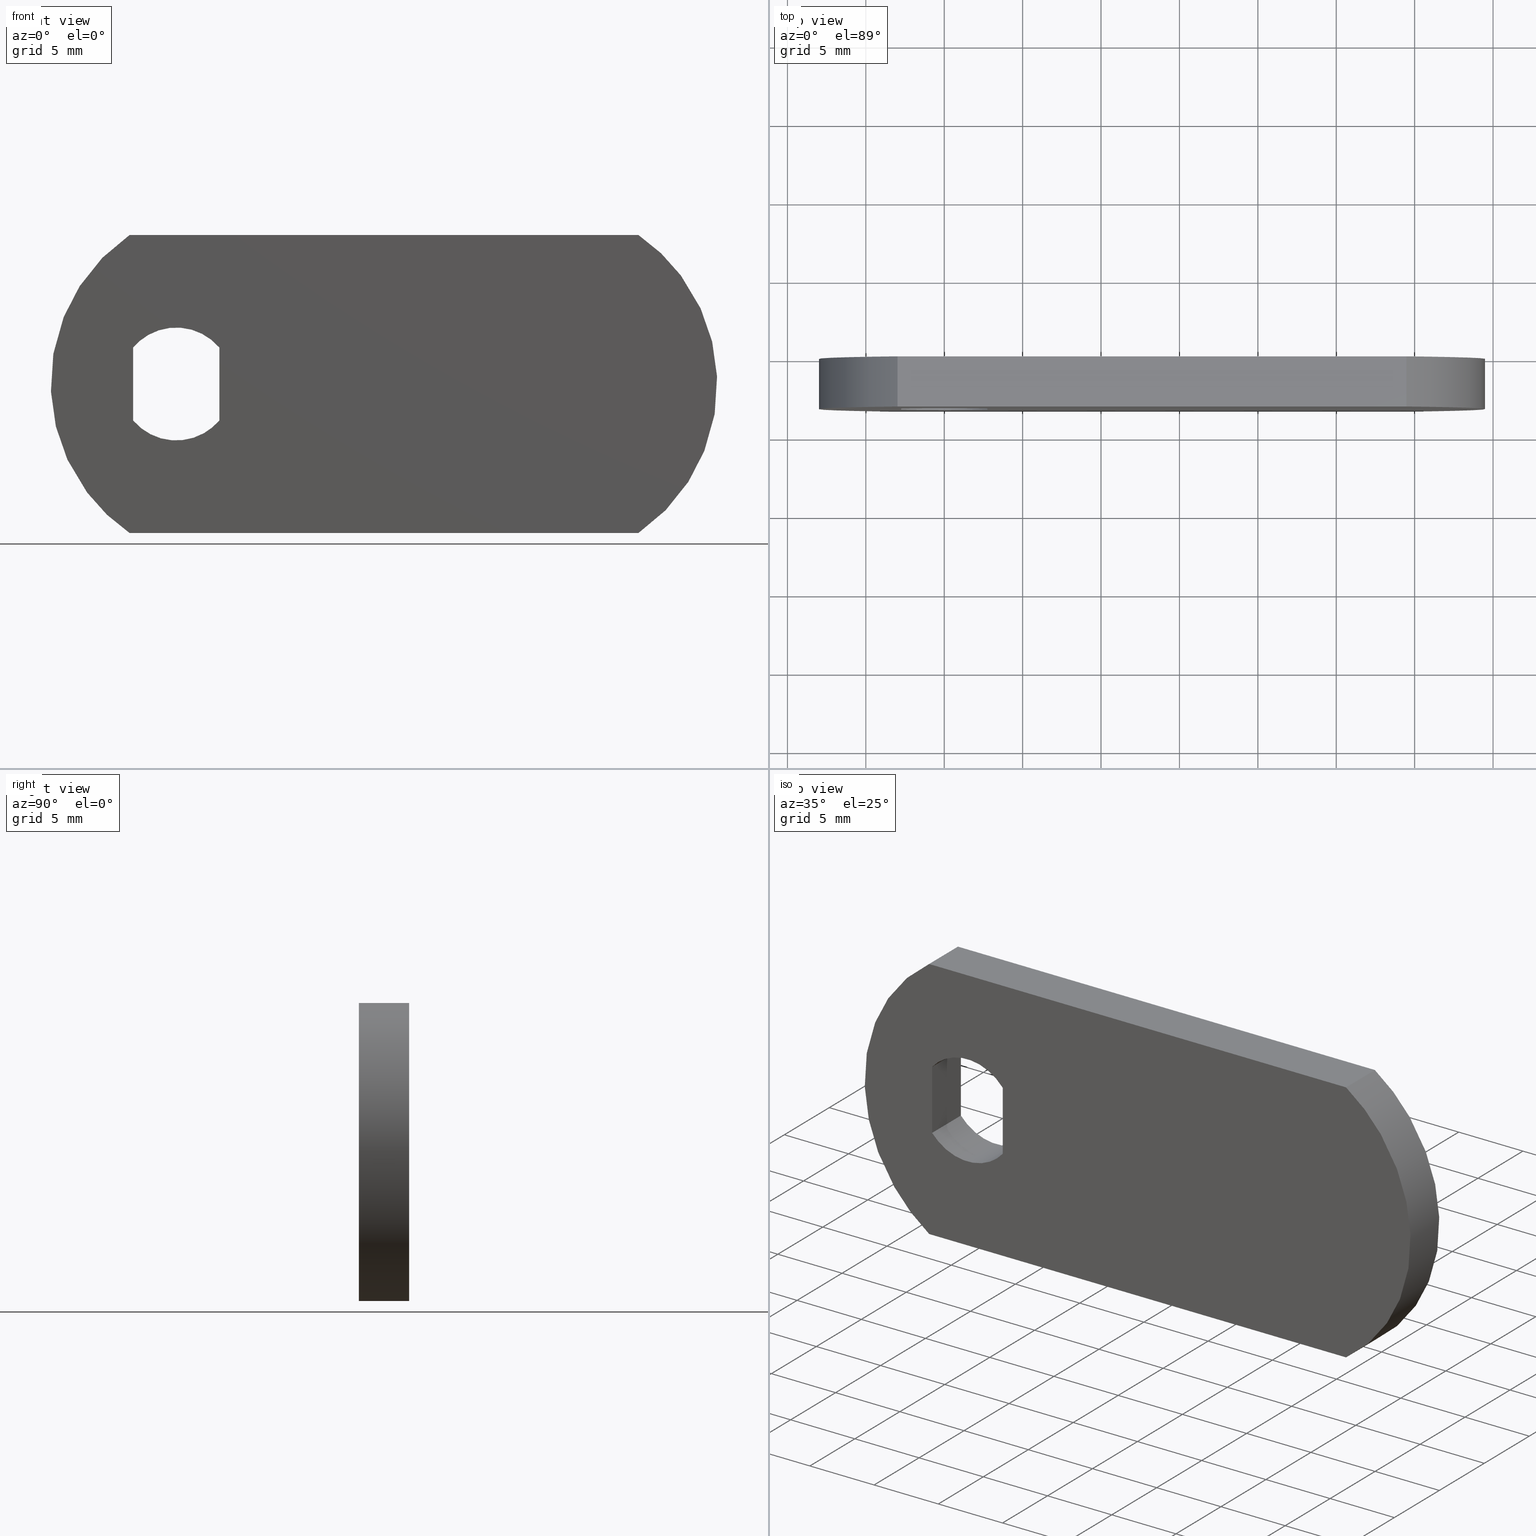
[diagram: canonical four-view strip — front | top / right | iso, engineering-drawing reading convention]
A machine part, canonical four-view strip (front | top / right | iso — engineering-drawing reading convention). The complete STEP part file that produces these views, byte-faithful:
ISO-10303-21;
HEADER;
/****************************************************************
 * Generated by software with PDE/Lib inside                    *
 * PDElib Version 4.4.1-0003, patched  Thursday August 19 11:58 *
 * International Technegroup Inc. (www.iti-oh.com)              *
 ****************************************************************/
FILE_DESCRIPTION((''),'2;1');
FILE_NAME('','2005-07-15T17:36:50',(''),(''),'','CADfix','');
FILE_SCHEMA(('AUTOMOTIVE_DESIGN'));
ENDSEC;
DATA;
#5=APPLICATION_CONTEXT('automotive design');
#6=APPLICATION_PROTOCOL_DEFINITION('Draft International Standard','automotive_design',1998,#5);
#7=PRODUCT_CONTEXT('None',#5,'mechanical');
#8=PRODUCT('cam','','None',(#7));
#9=PRODUCT_RELATED_PRODUCT_CATEGORY('part','description',(#8));
#10=PRODUCT_DEFINITION_FORMATION('None','None',#8);
#11=PRODUCT_DEFINITION_CONTEXT('part definition',#5,'design');
#12=PRODUCT_DEFINITION('None','None',#10,#11);
#18=(NAMED_UNIT(*)PLANE_ANGLE_UNIT()SI_UNIT($,.RADIAN.));
#19=DIMENSIONAL_EXPONENTS(0.0,0.0,0.0,0.0,0.0,0.0,0.0);
#20=PLANE_ANGLE_MEASURE_WITH_UNIT(PLANE_ANGLE_MEASURE(0.017453292500000),#18);
#24=(CONVERSION_BASED_UNIT('DEGREE',#20)NAMED_UNIT(#19)PLANE_ANGLE_UNIT());
#28=(NAMED_UNIT(*)SI_UNIT($,.STERADIAN.)SOLID_ANGLE_UNIT());
#32=(LENGTH_UNIT()NAMED_UNIT(*)SI_UNIT(.MILLI.,.METRE.));
#34=UNCERTAINTY_MEASURE_WITH_UNIT(LENGTH_MEASURE(0.001000000000000),#32,'DISTANCE_ACCURACY_VALUE','');
#36=(GEOMETRIC_REPRESENTATION_CONTEXT(3)GLOBAL_UNCERTAINTY_ASSIGNED_CONTEXT((#34))GLOBAL_UNIT_ASSIGNED_CONTEXT((#24,#28,#32))REPRESENTATION_CONTEXT('None','None'));
#37=AXIS2_PLACEMENT_3D('',#38,#39,#40);
#38=CARTESIAN_POINT('',(0.0,0.0,0.0));
#39=DIRECTION('',(0.0,0.0,1.0));
#40=DIRECTION('',(1.0,0.0,0.0));
#41=ADVANCED_BREP_SHAPE_REPRESENTATION('',(#37,#421),#36);
#42=PRODUCT_DEFINITION_SHAPE('','',#12);
#43=SHAPE_DEFINITION_REPRESENTATION(#42,#41);
#44=CARTESIAN_POINT('',(-10.122874917626749,0.0,10.449049963174311));
#45=CARTESIAN_POINT('',(36.622876057565577,0.0,10.449049963174311));
#46=CARTESIAN_POINT('',(-10.122874917626749,0.0,-10.449050472794029));
#47=CARTESIAN_POINT('',(36.622876057565577,0.0,-10.449050472794029));
#48=B_SPLINE_SURFACE_WITH_KNOTS('',1,1,((#44,#46),(#45,#47)),.UNSPECIFIED.,.F.,.F.,.U.,(2,2),(2,2),(0.0,46.745750975192337),(0.0,20.898100435968342),.UNSPECIFIED.);
#49=CARTESIAN_POINT('',(29.480740698407850,0.0,-9.500000000000000));
#50=VERTEX_POINT('',#49);
#51=CARTESIAN_POINT('',(29.480740698407850,0.0,9.500000000000000));
#52=VERTEX_POINT('',#51);
#53=CARTESIAN_POINT('',(29.480740698407850,0.0,-9.500000000000007));
#54=CARTESIAN_POINT('',(34.500000000000000,0.0,-6.075945470348388));
#55=CARTESIAN_POINT('',(34.500000000000000,0.0,0.0));
#56=CARTESIAN_POINT('',(34.500000000000000,0.0,6.075945470348382));
#57=CARTESIAN_POINT('',(29.480740698407860,0.0,9.500000000000002));
#65=(BOUNDED_CURVE()B_SPLINE_CURVE(2,(#53,#54,#55,#56,#57),.UNSPECIFIED.,.F.,.U.)B_SPLINE_CURVE_WITH_KNOTS((3,2,3),(0.0,0.500000000000000,1.0),.UNSPECIFIED.)CURVE()GEOMETRIC_REPRESENTATION_ITEM()RATIONAL_B_SPLINE_CURVE((1.0,0.884178338749251,1.0,0.884178338749251,1.0))REPRESENTATION_ITEM(''));
#66=EDGE_CURVE('',#50,#52,#65,.T.);
#67=ORIENTED_EDGE('',*,*,#66,.F.);
#68=CARTESIAN_POINT('',(-2.980740698407860,0.0,-9.500000000000000));
#69=VERTEX_POINT('',#68);
#70=CARTESIAN_POINT('',(-2.980740698407860,0.0,-9.500000000000000));
#71=CARTESIAN_POINT('',(29.480740698407850,0.0,-9.500000000000000));
#72=QUASI_UNIFORM_CURVE('',1,(#70,#71),.UNSPECIFIED.,.F.,.U.);
#73=EDGE_CURVE('',#69,#50,#72,.T.);
#74=ORIENTED_EDGE('',*,*,#73,.F.);
#75=CARTESIAN_POINT('',(-2.980740698407840,0.0,9.500000000000000));
#76=VERTEX_POINT('',#75);
#77=CARTESIAN_POINT('',(-2.980740698407848,0.0,9.500000000000007));
#78=CARTESIAN_POINT('',(-8.0,0.0,6.075945470348390));
#79=CARTESIAN_POINT('',(-8.0,0.0,0.0));
#80=CARTESIAN_POINT('',(-8.0,0.0,-6.075945470348378));
#81=CARTESIAN_POINT('',(-2.980740698407861,0.0,-9.499999999999998));
#89=(BOUNDED_CURVE()B_SPLINE_CURVE(2,(#77,#78,#79,#80,#81),.UNSPECIFIED.,.F.,.U.)B_SPLINE_CURVE_WITH_KNOTS((3,2,3),(0.0,0.500000000000000,1.0),.UNSPECIFIED.)CURVE()GEOMETRIC_REPRESENTATION_ITEM()RATIONAL_B_SPLINE_CURVE((1.0,0.884178338749251,1.0,0.884178338749251,1.0))REPRESENTATION_ITEM(''));
#90=EDGE_CURVE('',#76,#69,#89,.T.);
#91=ORIENTED_EDGE('',*,*,#90,.F.);
#92=CARTESIAN_POINT('',(29.480740698407850,0.0,9.500000000000000));
#93=CARTESIAN_POINT('',(-2.980740698407840,0.0,9.500000000000000));
#94=QUASI_UNIFORM_CURVE('',1,(#92,#93),.UNSPECIFIED.,.F.,.U.);
#95=EDGE_CURVE('',#52,#76,#94,.T.);
#96=ORIENTED_EDGE('',*,*,#95,.F.);
#97=EDGE_LOOP('',(#67,#74,#91,#96));
#98=FACE_OUTER_BOUND('',#97,.T.);
#99=CARTESIAN_POINT('',(2.750000000000000,0.0,2.323252031097775));
#100=VERTEX_POINT('',#99);
#101=CARTESIAN_POINT('',(-2.750000000000000,0.0,2.323252031097780));
#102=VERTEX_POINT('',#101);
#103=CARTESIAN_POINT('',(2.750000000000000,0.0,2.323252031097775));
#104=CARTESIAN_POINT('',(1.671379159290174,0.0,3.600000000000000));
#105=CARTESIAN_POINT('',(0.0,0.0,3.600000000000000));
#106=CARTESIAN_POINT('',(-1.671379159290171,0.0,3.600000000000000));
#107=CARTESIAN_POINT('',(-2.750000000000004,0.0,2.323252031097784));
#115=(BOUNDED_CURVE()B_SPLINE_CURVE(2,(#103,#104,#105,#106,#107),.UNSPECIFIED.,.F.,.U.)B_SPLINE_CURVE_WITH_KNOTS((3,2,3),(0.0,0.500000000000000,1.0),.UNSPECIFIED.)CURVE()GEOMETRIC_REPRESENTATION_ITEM()RATIONAL_B_SPLINE_CURVE((1.0,0.907013722723105,1.0,0.907013722723105,1.0))REPRESENTATION_ITEM(''));
#116=EDGE_CURVE('',#100,#102,#115,.T.);
#117=ORIENTED_EDGE('',*,*,#116,.T.);
#118=CARTESIAN_POINT('',(-2.750000000000000,0.0,-2.323252031097780));
#119=VERTEX_POINT('',#118);
#120=CARTESIAN_POINT('',(-2.750000000000000,0.0,2.323252031097780));
#121=CARTESIAN_POINT('',(-2.750000000000000,0.0,-2.323252031097780));
#122=QUASI_UNIFORM_CURVE('',1,(#120,#121),.UNSPECIFIED.,.F.,.U.);
#123=EDGE_CURVE('',#102,#119,#122,.T.);
#124=ORIENTED_EDGE('',*,*,#123,.T.);
#125=CARTESIAN_POINT('',(2.750000000000000,0.0,-2.323252031097775));
#126=VERTEX_POINT('',#125);
#127=CARTESIAN_POINT('',(-2.750000000000003,0.0,-2.323252031097785));
#128=CARTESIAN_POINT('',(-1.671379159290170,0.0,-3.600000000000001));
#129=CARTESIAN_POINT('',(0.0,0.0,-3.600000000000000));
#130=CARTESIAN_POINT('',(1.671379159290173,0.0,-3.600000000000001));
#131=CARTESIAN_POINT('',(2.750000000000006,0.0,-2.323252031097781));
#139=(BOUNDED_CURVE()B_SPLINE_CURVE(2,(#127,#128,#129,#130,#131),.UNSPECIFIED.,.F.,.U.)B_SPLINE_CURVE_WITH_KNOTS((3,2,3),(0.0,0.500000000000000,1.0),.UNSPECIFIED.)CURVE()GEOMETRIC_REPRESENTATION_ITEM()RATIONAL_B_SPLINE_CURVE((1.0,0.907013722723105,1.0,0.907013722723105,1.0))REPRESENTATION_ITEM(''));
#140=EDGE_CURVE('',#119,#126,#139,.T.);
#141=ORIENTED_EDGE('',*,*,#140,.T.);
#142=CARTESIAN_POINT('',(2.750000000000000,0.0,-2.323252031097775));
#143=CARTESIAN_POINT('',(2.750000000000000,0.0,2.323252031097775));
#144=QUASI_UNIFORM_CURVE('',1,(#142,#143),.UNSPECIFIED.,.F.,.U.);
#145=EDGE_CURVE('',#126,#100,#144,.T.);
#146=ORIENTED_EDGE('',*,*,#145,.T.);
#147=EDGE_LOOP('',(#117,#124,#141,#146));
#148=FACE_BOUND('',#147,.T.);
#149=ADVANCED_FACE('',(#98,#148),#48,.T.);
#150=CARTESIAN_POINT('',(-10.122874917626749,-3.200000000000000,10.449049963174311));
#151=CARTESIAN_POINT('',(36.622876057565577,-3.200000000000000,10.449049963174311));
#152=CARTESIAN_POINT('',(-10.122874917626749,-3.200000000000000,-10.449050472794029));
#153=CARTESIAN_POINT('',(36.622876057565577,-3.200000000000000,-10.449050472794029));
#154=B_SPLINE_SURFACE_WITH_KNOTS('',1,1,((#150,#152),(#151,#153)),.UNSPECIFIED.,.F.,.F.,.U.,(2,2),(2,2),(0.0,46.745750975192337),(0.0,20.898100435968342),.UNSPECIFIED.);
#155=CARTESIAN_POINT('',(29.480740698407850,-3.200000000000000,-9.500000000000000));
#156=VERTEX_POINT('',#155);
#157=CARTESIAN_POINT('',(29.480740698407850,-3.200000000000000,9.500000000000000));
#158=VERTEX_POINT('',#157);
#159=CARTESIAN_POINT('',(29.480740698407850,-3.200000000000000,-9.500000000000007));
#160=CARTESIAN_POINT('',(34.500000000000000,-3.200000000000001,-6.075945470348388));
#161=CARTESIAN_POINT('',(34.500000000000000,-3.200000000000000,0.0));
#162=CARTESIAN_POINT('',(34.500000000000000,-3.200000000000001,6.075945470348382));
#163=CARTESIAN_POINT('',(29.480740698407860,-3.200000000000000,9.500000000000002));
#171=(BOUNDED_CURVE()B_SPLINE_CURVE(2,(#159,#160,#161,#162,#163),.UNSPECIFIED.,.F.,.U.)B_SPLINE_CURVE_WITH_KNOTS((3,2,3),(0.0,0.500000000000000,1.0),.UNSPECIFIED.)CURVE()GEOMETRIC_REPRESENTATION_ITEM()RATIONAL_B_SPLINE_CURVE((1.0,0.884178338749251,1.0,0.884178338749251,1.0))REPRESENTATION_ITEM(''));
#172=EDGE_CURVE('',#156,#158,#171,.T.);
#173=ORIENTED_EDGE('',*,*,#172,.T.);
#174=CARTESIAN_POINT('',(-2.980740698407840,-3.200000000000000,9.500000000000000));
#175=VERTEX_POINT('',#174);
#176=CARTESIAN_POINT('',(29.480740698407850,-3.200000000000000,9.500000000000000));
#177=CARTESIAN_POINT('',(-2.980740698407840,-3.200000000000000,9.500000000000000));
#178=QUASI_UNIFORM_CURVE('',1,(#176,#177),.UNSPECIFIED.,.F.,.U.);
#179=EDGE_CURVE('',#158,#175,#178,.T.);
#180=ORIENTED_EDGE('',*,*,#179,.T.);
#181=CARTESIAN_POINT('',(-2.980740698407860,-3.200000000000000,-9.500000000000000));
#182=VERTEX_POINT('',#181);
#183=CARTESIAN_POINT('',(-2.980740698407848,-3.200000000000000,9.500000000000007));
#184=CARTESIAN_POINT('',(-8.0,-3.200000000000001,6.075945470348390));
#185=CARTESIAN_POINT('',(-8.0,-3.200000000000000,0.0));
#186=CARTESIAN_POINT('',(-8.0,-3.200000000000001,-6.075945470348378));
#187=CARTESIAN_POINT('',(-2.980740698407861,-3.200000000000000,-9.499999999999998));
#195=(BOUNDED_CURVE()B_SPLINE_CURVE(2,(#183,#184,#185,#186,#187),.UNSPECIFIED.,.F.,.U.)B_SPLINE_CURVE_WITH_KNOTS((3,2,3),(0.0,0.500000000000000,1.0),.UNSPECIFIED.)CURVE()GEOMETRIC_REPRESENTATION_ITEM()RATIONAL_B_SPLINE_CURVE((1.0,0.884178338749251,1.0,0.884178338749251,1.0))REPRESENTATION_ITEM(''));
#196=EDGE_CURVE('',#175,#182,#195,.T.);
#197=ORIENTED_EDGE('',*,*,#196,.T.);
#198=CARTESIAN_POINT('',(-2.980740698407860,-3.200000000000000,-9.500000000000000));
#199=CARTESIAN_POINT('',(29.480740698407850,-3.200000000000000,-9.500000000000000));
#200=QUASI_UNIFORM_CURVE('',1,(#198,#199),.UNSPECIFIED.,.F.,.U.);
#201=EDGE_CURVE('',#182,#156,#200,.T.);
#202=ORIENTED_EDGE('',*,*,#201,.T.);
#203=EDGE_LOOP('',(#173,#180,#197,#202));
#204=FACE_OUTER_BOUND('',#203,.T.);
#205=CARTESIAN_POINT('',(2.750000000000000,-3.200000000000000,2.323252031097775));
#206=VERTEX_POINT('',#205);
#207=CARTESIAN_POINT('',(-2.750000000000000,-3.200000000000000,2.323252031097780));
#208=VERTEX_POINT('',#207);
#209=CARTESIAN_POINT('',(2.750000000000007,-3.200000000000000,2.323252031097780));
#210=CARTESIAN_POINT('',(1.671379159290174,-3.200000000000000,3.600000000000000));
#211=CARTESIAN_POINT('',(0.0,-3.200000000000000,3.600000000000000));
#212=CARTESIAN_POINT('',(-1.671379159290171,-3.200000000000000,3.600000000000000));
#213=CARTESIAN_POINT('',(-2.750000000000004,-3.200000000000000,2.323252031097784));
#221=(BOUNDED_CURVE()B_SPLINE_CURVE(2,(#209,#210,#211,#212,#213),.UNSPECIFIED.,.F.,.U.)B_SPLINE_CURVE_WITH_KNOTS((3,2,3),(0.0,0.500000000000000,1.0),.UNSPECIFIED.)CURVE()GEOMETRIC_REPRESENTATION_ITEM()RATIONAL_B_SPLINE_CURVE((1.0,0.907013722723105,1.0,0.907013722723105,1.0))REPRESENTATION_ITEM(''));
#222=EDGE_CURVE('',#206,#208,#221,.T.);
#223=ORIENTED_EDGE('',*,*,#222,.F.);
#224=CARTESIAN_POINT('',(2.750000000000000,-3.200000000000000,-2.323252031097775));
#225=VERTEX_POINT('',#224);
#226=CARTESIAN_POINT('',(2.750000000000000,-3.200000000000000,-2.323252031097775));
#227=CARTESIAN_POINT('',(2.750000000000000,-3.200000000000000,2.323252031097775));
#228=QUASI_UNIFORM_CURVE('',1,(#226,#227),.UNSPECIFIED.,.F.,.U.);
#229=EDGE_CURVE('',#225,#206,#228,.T.);
#230=ORIENTED_EDGE('',*,*,#229,.F.);
#231=CARTESIAN_POINT('',(-2.750000000000000,-3.200000000000000,-2.323252031097780));
#232=VERTEX_POINT('',#231);
#233=CARTESIAN_POINT('',(-2.750000000000003,-3.200000000000000,-2.323252031097785));
#234=CARTESIAN_POINT('',(-1.671379159290170,-3.199999999999999,-3.600000000000001));
#235=CARTESIAN_POINT('',(0.0,-3.200000000000000,-3.600000000000000));
#236=CARTESIAN_POINT('',(1.671379159290173,-3.199999999999999,-3.600000000000001));
#237=CARTESIAN_POINT('',(2.750000000000006,-3.200000000000000,-2.323252031097781));
#245=(BOUNDED_CURVE()B_SPLINE_CURVE(2,(#233,#234,#235,#236,#237),.UNSPECIFIED.,.F.,.U.)B_SPLINE_CURVE_WITH_KNOTS((3,2,3),(0.0,0.500000000000000,1.0),.UNSPECIFIED.)CURVE()GEOMETRIC_REPRESENTATION_ITEM()RATIONAL_B_SPLINE_CURVE((1.0,0.907013722723105,1.0,0.907013722723105,1.0))REPRESENTATION_ITEM(''));
#246=EDGE_CURVE('',#232,#225,#245,.T.);
#247=ORIENTED_EDGE('',*,*,#246,.F.);
#248=CARTESIAN_POINT('',(-2.750000000000000,-3.200000000000000,2.323252031097780));
#249=CARTESIAN_POINT('',(-2.750000000000000,-3.200000000000000,-2.323252031097780));
#250=QUASI_UNIFORM_CURVE('',1,(#248,#249),.UNSPECIFIED.,.F.,.U.);
#251=EDGE_CURVE('',#208,#232,#250,.T.);
#252=ORIENTED_EDGE('',*,*,#251,.F.);
#253=EDGE_LOOP('',(#223,#230,#247,#252));
#254=FACE_BOUND('',#253,.T.);
#255=ADVANCED_FACE('',(#204,#254),#154,.F.);
#256=CARTESIAN_POINT('',(-4.602191935987317,-3.359840053876400,-9.500000000000000));
#257=CARTESIAN_POINT('',(31.102192516443829,-3.359840053876400,-9.500000000000000));
#258=CARTESIAN_POINT('',(-4.602191935987317,0.159840082486629,-9.500000000000000));
#259=CARTESIAN_POINT('',(31.102192516443829,0.159840082486629,-9.500000000000000));
#260=B_SPLINE_SURFACE_WITH_KNOTS('',1,1,((#256,#258),(#257,#259)),.UNSPECIFIED.,.F.,.F.,.U.,(2,2),(2,2),(0.0,35.704384452431142),(0.0,3.519680136363030),.UNSPECIFIED.);
#261=ORIENTED_EDGE('',*,*,#73,.T.);
#262=CARTESIAN_POINT('',(29.480740698407850,-3.200000000000000,-9.500000000000000));
#263=CARTESIAN_POINT('',(29.480740698407850,0.0,-9.500000000000000));
#264=QUASI_UNIFORM_CURVE('',1,(#262,#263),.UNSPECIFIED.,.F.,.U.);
#265=EDGE_CURVE('',#156,#50,#264,.T.);
#266=ORIENTED_EDGE('',*,*,#265,.F.);
#267=ORIENTED_EDGE('',*,*,#201,.F.);
#268=CARTESIAN_POINT('',(-2.980740698407860,-3.200000000000000,-9.500000000000000));
#269=CARTESIAN_POINT('',(-2.980740698407860,0.0,-9.500000000000000));
#270=QUASI_UNIFORM_CURVE('',1,(#268,#269),.UNSPECIFIED.,.F.,.U.);
#271=EDGE_CURVE('',#182,#69,#270,.T.);
#272=ORIENTED_EDGE('',*,*,#271,.T.);
#273=EDGE_LOOP('',(#261,#266,#267,#272));
#274=FACE_OUTER_BOUND('',#273,.T.);
#275=ADVANCED_FACE('',(#274),#260,.F.);
#276=CARTESIAN_POINT('',(-2.750000000000000,-3.359840053876400,2.555344839779990));
#277=CARTESIAN_POINT('',(-2.750000000000000,-3.359840053876400,-2.555344673608055));
#278=CARTESIAN_POINT('',(-2.750000000000000,0.159840082486629,2.555344839779990));
#279=CARTESIAN_POINT('',(-2.750000000000000,0.159840082486629,-2.555344673608055));
#280=B_SPLINE_SURFACE_WITH_KNOTS('',1,1,((#276,#278),(#277,#279)),.UNSPECIFIED.,.F.,.F.,.U.,(2,2),(2,2),(0.0,5.110689513388045),(0.0,3.519680136363029),.UNSPECIFIED.);
#281=ORIENTED_EDGE('',*,*,#123,.F.);
#282=CARTESIAN_POINT('',(-2.750000000000000,-3.200000000000000,2.323252031097780));
#283=CARTESIAN_POINT('',(-2.750000000000000,0.0,2.323252031097780));
#284=QUASI_UNIFORM_CURVE('',1,(#282,#283),.UNSPECIFIED.,.F.,.U.);
#285=EDGE_CURVE('',#208,#102,#284,.T.);
#286=ORIENTED_EDGE('',*,*,#285,.F.);
#287=ORIENTED_EDGE('',*,*,#251,.T.);
#288=CARTESIAN_POINT('',(-2.750000000000000,-3.200000000000000,-2.323252031097780));
#289=CARTESIAN_POINT('',(-2.750000000000000,0.0,-2.323252031097780));
#290=QUASI_UNIFORM_CURVE('',1,(#288,#289),.UNSPECIFIED.,.F.,.U.);
#291=EDGE_CURVE('',#232,#119,#290,.T.);
#292=ORIENTED_EDGE('',*,*,#291,.T.);
#293=EDGE_LOOP('',(#281,#286,#287,#292));
#294=FACE_OUTER_BOUND('',#293,.T.);
#295=ADVANCED_FACE('',(#294),#280,.T.);
#296=CARTESIAN_POINT('',(-2.824873879980530,-3.280000000000001,-2.231610979136762));
#297=CARTESIAN_POINT('',(-2.824873879980530,0.082000000000000,-2.231610979136762));
#298=CARTESIAN_POINT('',(0.128064459999365,-3.280000000000000,-5.969573582739396));
#299=CARTESIAN_POINT('',(0.128064459999365,0.082000000000000,-5.969573582739396));
#300=CARTESIAN_POINT('',(2.917979773599898,-3.280000000000000,-2.108410311315585));
#301=CARTESIAN_POINT('',(2.917979773599898,0.082000000000000,-2.108410311315585));
#309=(BOUNDED_SURFACE()B_SPLINE_SURFACE(1,2,((#296,#298,#300),(#297,#299,#301)),.UNSPECIFIED.,.F.,.F.,.U.)B_SPLINE_SURFACE_WITH_KNOTS((2,2),(3,3),(0.0,3.362000000000001),(0.0,7.167140233186154),.UNSPECIFIED.)GEOMETRIC_REPRESENTATION_ITEM()RATIONAL_B_SPLINE_SURFACE(((1.0,0.602504377753214,0.998623677677103),(1.0,0.602504377753214,0.998623677677103)))REPRESENTATION_ITEM('')SURFACE());
#310=ORIENTED_EDGE('',*,*,#140,.F.);
#311=ORIENTED_EDGE('',*,*,#291,.F.);
#312=ORIENTED_EDGE('',*,*,#246,.T.);
#313=CARTESIAN_POINT('',(2.750000000000000,-3.200000000000000,-2.323252031097775));
#314=CARTESIAN_POINT('',(2.750000000000000,0.0,-2.323252031097775));
#315=QUASI_UNIFORM_CURVE('',1,(#313,#314),.UNSPECIFIED.,.F.,.U.);
#316=EDGE_CURVE('',#225,#126,#315,.T.);
#317=ORIENTED_EDGE('',*,*,#316,.T.);
#318=EDGE_LOOP('',(#310,#311,#312,#317));
#319=FACE_OUTER_BOUND('',#318,.T.);
#320=ADVANCED_FACE('',(#319),#309,.F.);
#321=CARTESIAN_POINT('',(2.750000000000000,-3.359840053876400,-2.555344839779985));
#322=CARTESIAN_POINT('',(2.750000000000000,-3.359840053876400,2.555344673608050));
#323=CARTESIAN_POINT('',(2.750000000000000,0.159840082486629,-2.555344839779985));
#324=CARTESIAN_POINT('',(2.750000000000000,0.159840082486629,2.555344673608050));
#325=B_SPLINE_SURFACE_WITH_KNOTS('',1,1,((#321,#323),(#322,#324)),.UNSPECIFIED.,.F.,.F.,.U.,(2,2),(2,2),(0.0,5.110689513388035),(0.0,3.519680136363030),.UNSPECIFIED.);
#326=ORIENTED_EDGE('',*,*,#145,.F.);
#327=ORIENTED_EDGE('',*,*,#316,.F.);
#328=ORIENTED_EDGE('',*,*,#229,.T.);
#329=CARTESIAN_POINT('',(2.750000000000000,-3.200000000000000,2.323252031097775));
#330=CARTESIAN_POINT('',(2.750000000000000,0.0,2.323252031097775));
#331=QUASI_UNIFORM_CURVE('',1,(#329,#330),.UNSPECIFIED.,.F.,.U.);
#332=EDGE_CURVE('',#206,#100,#331,.T.);
#333=ORIENTED_EDGE('',*,*,#332,.T.);
#334=EDGE_LOOP('',(#326,#327,#328,#333));
#335=FACE_OUTER_BOUND('',#334,.T.);
#336=ADVANCED_FACE('',(#335),#325,.T.);
#337=CARTESIAN_POINT('',(2.770169229747519,-3.280000000000001,2.299165596158752));
#338=CARTESIAN_POINT('',(2.770169229747519,0.082000000000000,2.299165596158752));
#339=CARTESIAN_POINT('',(-0.120278068370746,-3.280000000000002,5.781745615114988));
#340=CARTESIAN_POINT('',(-0.120278068370746,0.082000000000000,5.781745615114988));
#341=CARTESIAN_POINT('',(-2.863390619823822,-3.280000000000001,2.181970246888105));
#342=CARTESIAN_POINT('',(-2.863390619823822,0.082000000000000,2.181970246888105));
#350=(BOUNDED_SURFACE()B_SPLINE_SURFACE(1,2,((#337,#339,#341),(#338,#340,#342)),.UNSPECIFIED.,.F.,.F.,.U.)B_SPLINE_SURFACE_WITH_KNOTS((2,2),(3,3),(0.0,3.362000000000001),(0.0,6.945735467773011),.UNSPECIFIED.)GEOMETRIC_REPRESENTATION_ITEM()RATIONAL_B_SPLINE_SURFACE(((1.0,0.622514636637620,1.0),(1.0,0.622514636637620,1.0)))REPRESENTATION_ITEM('')SURFACE());
#351=ORIENTED_EDGE('',*,*,#116,.F.);
#352=ORIENTED_EDGE('',*,*,#332,.F.);
#353=ORIENTED_EDGE('',*,*,#222,.T.);
#354=ORIENTED_EDGE('',*,*,#285,.T.);
#355=EDGE_LOOP('',(#351,#352,#353,#354));
#356=FACE_OUTER_BOUND('',#355,.T.);
#357=ADVANCED_FACE('',(#356),#350,.F.);
#358=CARTESIAN_POINT('',(-2.897591844425604,-3.280000000000000,9.556192682870039));
#359=CARTESIAN_POINT('',(-2.897591844425604,0.082000000000000,9.556192682870039));
#360=CARTESIAN_POINT('',(-17.897809670882388,-3.280000000000000,-0.486014963609305));
#361=CARTESIAN_POINT('',(-17.897809670882388,0.082000000000000,-0.486014963609305));
#362=CARTESIAN_POINT('',(-2.457112698290155,-3.280000000000000,-9.836808847378810));
#363=CARTESIAN_POINT('',(-2.457112698290155,0.082000000000000,-9.836808847378810));
#371=(BOUNDED_SURFACE()B_SPLINE_SURFACE(1,2,((#358,#360,#362),(#359,#361,#363)),.UNSPECIFIED.,.F.,.F.,.U.)B_SPLINE_SURFACE_WITH_KNOTS((2,2),(3,3),(0.0,3.362000000000001),(0.0,25.236464184826680),.UNSPECIFIED.)GEOMETRIC_REPRESENTATION_ITEM()RATIONAL_B_SPLINE_SURFACE(((1.0,0.537299608346824,1.0),(1.0,0.537299608346824,1.0)))REPRESENTATION_ITEM('')SURFACE());
#372=ORIENTED_EDGE('',*,*,#90,.T.);
#373=ORIENTED_EDGE('',*,*,#271,.F.);
#374=ORIENTED_EDGE('',*,*,#196,.F.);
#375=CARTESIAN_POINT('',(-2.980740698407840,-3.200000000000000,9.500000000000000));
#376=CARTESIAN_POINT('',(-2.980740698407840,0.0,9.500000000000000));
#377=QUASI_UNIFORM_CURVE('',1,(#375,#376),.UNSPECIFIED.,.F.,.U.);
#378=EDGE_CURVE('',#175,#76,#377,.T.);
#379=ORIENTED_EDGE('',*,*,#378,.T.);
#380=EDGE_LOOP('',(#372,#373,#374,#379));
#381=FACE_OUTER_BOUND('',#380,.T.);
#382=ADVANCED_FACE('',(#381),#371,.T.);
#383=CARTESIAN_POINT('',(31.102192545437632,-3.359840053876400,9.500000000000000));
#384=CARTESIAN_POINT('',(-4.602192545437617,-3.359840053876400,9.500000000000000));
#385=CARTESIAN_POINT('',(31.102192545437632,0.159840082486629,9.500000000000000));
#386=CARTESIAN_POINT('',(-4.602192545437617,0.159840082486629,9.500000000000000));
#387=B_SPLINE_SURFACE_WITH_KNOTS('',1,1,((#383,#385),(#384,#386)),.UNSPECIFIED.,.F.,.F.,.U.,(2,2),(2,2),(0.0,35.704385090875249),(0.0,3.519680136363029),.UNSPECIFIED.);
#388=ORIENTED_EDGE('',*,*,#95,.T.);
#389=ORIENTED_EDGE('',*,*,#378,.F.);
#390=ORIENTED_EDGE('',*,*,#179,.F.);
#391=CARTESIAN_POINT('',(29.480740698407850,-3.200000000000000,9.500000000000000));
#392=CARTESIAN_POINT('',(29.480740698407850,0.0,9.500000000000000));
#393=QUASI_UNIFORM_CURVE('',1,(#391,#392),.UNSPECIFIED.,.F.,.U.);
#394=EDGE_CURVE('',#158,#52,#393,.T.);
#395=ORIENTED_EDGE('',*,*,#394,.T.);
#396=EDGE_LOOP('',(#388,#389,#390,#395));
#397=FACE_OUTER_BOUND('',#396,.T.);
#398=ADVANCED_FACE('',(#397),#387,.F.);
#399=CARTESIAN_POINT('',(29.397591844425609,-3.280000000000001,-9.556192682870035));
#400=CARTESIAN_POINT('',(29.397591844425609,0.082000000000000,-9.556192682870035));
#401=CARTESIAN_POINT('',(44.397809670882395,-3.280000000000002,0.486014963609317));
#402=CARTESIAN_POINT('',(44.397809670882395,0.082000000000000,0.486014963609317));
#403=CARTESIAN_POINT('',(28.957112698290150,-3.280000000000001,9.836808847378812));
#404=CARTESIAN_POINT('',(28.957112698290150,0.082000000000000,9.836808847378812));
#412=(BOUNDED_SURFACE()B_SPLINE_SURFACE(1,2,((#399,#401,#403),(#400,#402,#404)),.UNSPECIFIED.,.F.,.F.,.U.)B_SPLINE_SURFACE_WITH_KNOTS((2,2),(3,3),(0.0,3.362000000000001),(0.0,25.236464184826680),.UNSPECIFIED.)GEOMETRIC_REPRESENTATION_ITEM()RATIONAL_B_SPLINE_SURFACE(((1.0,0.537299608346824,1.0),(1.0,0.537299608346824,1.0)))REPRESENTATION_ITEM('')SURFACE());
#413=ORIENTED_EDGE('',*,*,#66,.T.);
#414=ORIENTED_EDGE('',*,*,#394,.F.);
#415=ORIENTED_EDGE('',*,*,#172,.F.);
#416=ORIENTED_EDGE('',*,*,#265,.T.);
#417=EDGE_LOOP('',(#413,#414,#415,#416));
#418=FACE_OUTER_BOUND('',#417,.T.);
#419=ADVANCED_FACE('',(#418),#412,.T.);
#420=CLOSED_SHELL('',(#149,#255,#275,#295,#320,#336,#357,#382,#398,#419));
#421=MANIFOLD_SOLID_BREP('cam',#420);
#427=(NAMED_UNIT(*)PLANE_ANGLE_UNIT()SI_UNIT($,.RADIAN.));
#428=DIMENSIONAL_EXPONENTS(0.0,0.0,0.0,0.0,0.0,0.0,0.0);
#429=PLANE_ANGLE_MEASURE_WITH_UNIT(PLANE_ANGLE_MEASURE(0.017453292500000),#427);
#433=(CONVERSION_BASED_UNIT('DEGREE',#429)NAMED_UNIT(#428)PLANE_ANGLE_UNIT());
#437=(NAMED_UNIT(*)SI_UNIT($,.STERADIAN.)SOLID_ANGLE_UNIT());
#441=(LENGTH_UNIT()NAMED_UNIT(*)SI_UNIT(.MILLI.,.METRE.));
#443=UNCERTAINTY_MEASURE_WITH_UNIT(LENGTH_MEASURE(0.001000000000000),#441,'DISTANCE_ACCURACY_VALUE','');
#445=(GEOMETRIC_REPRESENTATION_CONTEXT(3)GLOBAL_UNCERTAINTY_ASSIGNED_CONTEXT((#443))GLOBAL_UNIT_ASSIGNED_CONTEXT((#433,#437,#441))REPRESENTATION_CONTEXT('','3D'));
ENDSEC;
END-ISO-10303-21;
